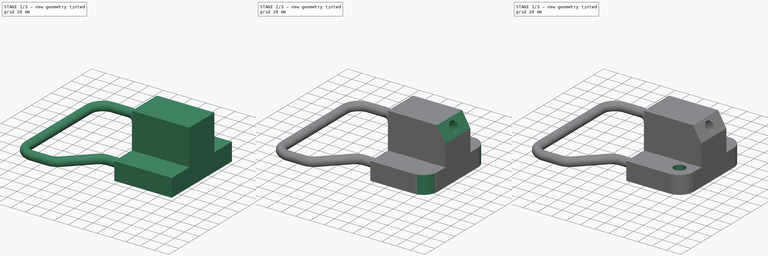
[diagram: build sequence overview — one tinted view per stage of 3, left to right]
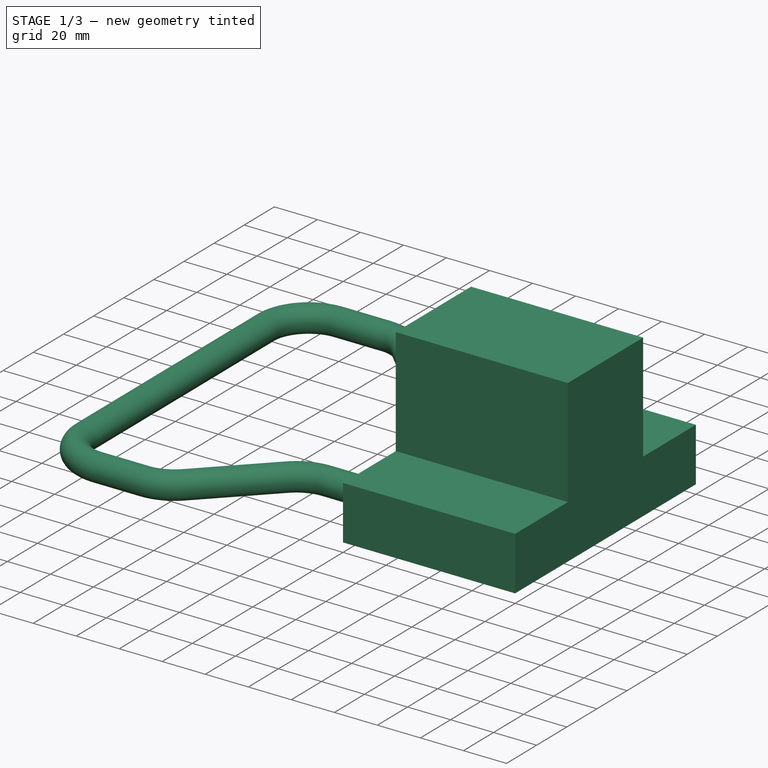
[diagram: stage 1 of 3 — iso view after this stage's code; geometry added in this stage tinted green]
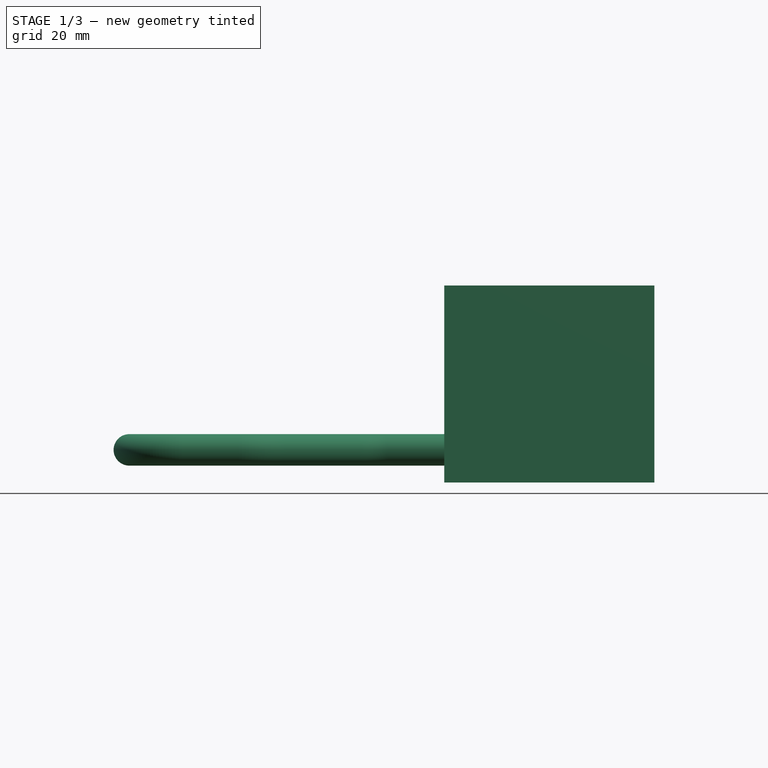
[diagram: stage 1 of 3 — front view after this stage's code; geometry added in this stage tinted green]
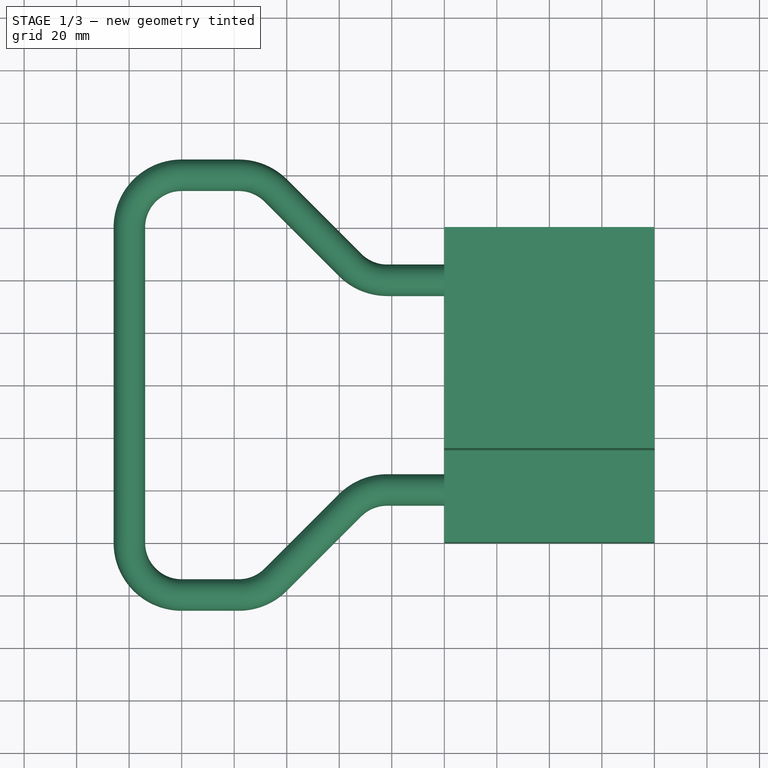
[diagram: stage 1 of 3 — top view after this stage's code; geometry added in this stage tinted green]
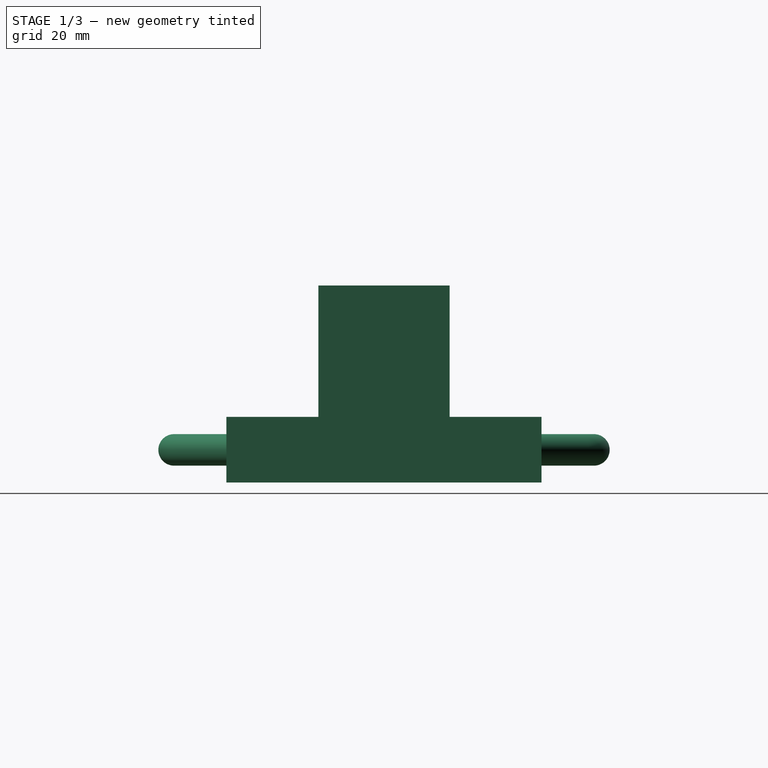
[diagram: stage 1 of 3 — right view after this stage's code; geometry added in this stage tinted green]
FCSTD DOCUMENT  (FreeCAD 0.21R33771 (Git))
Label: ex39
License: All rights reserved
LicenseURL: https://en.wikipedia.org/wiki/All_rights_reserved
objects: Sketcher::SketchObject×6, PartDesign::Fillet×2, PartDesign::Pad×1, PartDesign::Plane×1, PartDesign::AdditivePipe×1, PartDesign::Chamfer×1, PartDesign::SubtractivePipe×1, PartDesign::Pocket×1, PartDesign::Body×1
note: 22 computed .brp shape members not serialized (recipe doc carries the construction recipe); baked Part::Feature solids carry a one-line shape summary decoded from their .brp

FEATURE [Sketcher::SketchObject] Sketch
  FullyConstrained = false
  MapMode = 5
  Placement = pos=(0,0,0) rot=(0.57735,0.57735,0.57735;2.0944rad)
  Support = -> [YZ_Plane]
  sketch-geometry (8):
    g0: LineSegment StartX=-60.0062 StartY=25 StartZ=0 EndX=-25.0062 EndY=25 EndZ=0
    g1: LineSegment StartX=59.9938 StartY=25.0003 StartZ=0 EndX=59.9938 EndY=0 EndZ=0
    g2: LineSegment StartX=59.9938 StartY=0 StartZ=0 EndX=-60.0062 EndY=0 EndZ=0
    g3: LineSegment StartX=-60.0062 StartY=0 StartZ=0 EndX=-60.0062 EndY=25 EndZ=0
    g4: LineSegment StartX=24.9938 StartY=25 StartZ=0 EndX=24.9938 EndY=75 EndZ=0
    g5: LineSegment StartX=24.9938 StartY=75 StartZ=0 EndX=-25.0062 EndY=75 EndZ=0
    g6: LineSegment StartX=-25.0062 StartY=75 StartZ=0 EndX=-25.0062 EndY=25 EndZ=0
    g7: LineSegment StartX=24.9938 StartY=25 StartZ=0 EndX=59.9938 EndY=25.0003 EndZ=0
  constraints (22):
    c: Coincident(g7,g1)
    c: Coincident(g2,g3)
    c: Coincident(g3,g0)
    c: Horizontal(g0)
    c: Vertical(g1)
    c: Vertical(g3)
    c: Coincident(g4,g5)
    c: Coincident(g5,g6)
    c: Horizontal(g5)
    c: Vertical(g4)
    c: Vertical(g6)
    c: DistanceX(g2,g2) = 120
    c: DistanceY(g6,g6) = 50
    c: DistanceY(g-1,g4) = 25
    c: Coincident(g0,g6)
    c: Horizontal(g0,g4)
    c: Equal(g7,g0)
    c: Coincident(g4,g7)
    c: PointOnObject(g2,g-1)
    c: Horizontal(g2)
    c: Coincident(g2,g1)
    c: Equal(g6,g5)
FEATURE [PartDesign::Pad] Pad
  Direction = (1,-2e-16,3e-16)
  Length = 80
  Length2 = 10
  Placement = pos=(0,0,0) rot=(1,1,1;2.0944rad)
  Profile = -> Sketch
  ReferenceAxis = -> Sketch [N_Axis]
  Type = 0
FEATURE [PartDesign::Plane] DatumPlane
  AttachmentOffset = pos=(0,0,-12.5) rot=(0,0,1;0rad)
  Length = 209.472
  MapMode = 5
  Placement = pos=(-4.9e-15,6.9e-15,12.5) rot=(0.707107,0.707107,0;3.14159rad)
  ResizeMode = 0
  Support = -> [Pad]
  Width = 243.547
FEATURE [Sketcher::SketchObject] Sketch001
  FullyConstrained = true
  MapMode = 5
  Placement = pos=(-4.9e-15,6.9e-15,12.5) rot=(0.707107,0.707107,0;3.14159rad)
  Support = -> [DatumPlane]
  sketch-geometry (15):
    g0: LineSegment StartX=-40 StartY=0 StartZ=0 EndX=-40 EndY=-21.7157 EndZ=0
    g1: LineSegment StartX=-45.8579 StartY=-35.8579 StartZ=0 EndX=-74.1421 EndY=-64.1421 EndZ=0
    g2: LineSegment StartX=-80 StartY=-78.2843 StartZ=0 EndX=-80 EndY=-100 EndZ=0
    g3: LineSegment StartX=-60 StartY=-120 StartZ=0 EndX=60 EndY=-120 EndZ=0
    g4: LineSegment StartX=80 StartY=-100 StartZ=0 EndX=80 EndY=-78.2843 EndZ=0
    g5: LineSegment StartX=74.1421 StartY=-64.1421 StartZ=0 EndX=45.8579 EndY=-35.8579 EndZ=0
    g6: LineSegment StartX=40 StartY=-21.7157 StartZ=0 EndX=40 EndY=0 EndZ=0
    g7: ArcOfCircle CenterX=60 CenterY=-100 CenterZ=0 NormalX=0 NormalY=0 NormalZ=1 AngleXU=0 Radius=20 StartAngle=4.71239 EndAngle=6.28319
    g8: ArcOfCircle CenterX=-60 CenterY=-100 CenterZ=0 NormalX=0 NormalY=0 NormalZ=1 AngleXU=0 Radius=20 StartAngle=3.14159 EndAngle=4.71239
    g9: ArcOfCircle CenterX=-60 CenterY=-78.2843 CenterZ=0 NormalX=0 NormalY=0 NormalZ=1 AngleXU=0 Radius=20 StartAngle=2.35619 EndAngle=3.14159
    g10: ArcOfCircle CenterX=-60 CenterY=-21.7157 CenterZ=0 NormalX=0 NormalY=0 NormalZ=1 AngleXU=0 Radius=20 StartAngle=5.49779 EndAngle=6.28319
    g11: ArcOfCircle CenterX=60 CenterY=-21.7157 CenterZ=0 NormalX=0 NormalY=0 NormalZ=1 AngleXU=0 Radius=20 StartAngle=3.14159 EndAngle=3.92699
    g12: ArcOfCircle CenterX=60 CenterY=-78.2843 CenterZ=0 NormalX=0 NormalY=0 NormalZ=1 AngleXU=0 Radius=20 StartAngle=0 EndAngle=0.785398
    g13: LineSegment StartX=-45.8579 StartY=-35.8579 StartZ=0 EndX=-40 EndY=-30 EndZ=0
    g14: LineSegment StartX=-40 StartY=-21.7157 StartZ=0 EndX=-40 EndY=-30 EndZ=0
  constraints (37):
    c: PointOnObject(g0,g-1)
    c: Vertical(g0)
    c: Horizontal(g3)
    c: Vertical(g4)
    c: Vertical(g6)
    c: Equal(g1,g5)
    c: Angle(g0,g1) = 2.35619
    c: Angle(g5,g6) = 2.35619
    c: Tangent(g3,g7) = -1.5708
    c: Tangent(g4,g7) = -1.5708
    c: Tangent(g3,g8) = -1.5708
    c: Tangent(g2,g8) = -1.5708
    c: Tangent(g1,g9) = -1.5708
    c: Tangent(g2,g9) = -1.5708
    c: Tangent(g1,g10) = 1.5708
    c: Tangent(g0,g10) = 1.5708
    c: Tangent(g6,g11) = 1.5708
    c: Tangent(g5,g11) = 1.5708
    c: Tangent(g4,g12) = -1.5708
    c: Tangent(g5,g12) = -1.5708
    c: Equal(g7,g12)
    c: Equal(g12,g11)
    c: Equal(g11,g10)
    c: Equal(g10,g9)
    c: Radius(g8) = 20
    c: Equal(g2,g4)
    c: DistanceX(g2,g4) = 160
    c: DistanceX(g0,g6) = 80
    c: Coincident(g13,g1)
    c: Coincident(g14,g0)
    c: Coincident(g14,g13)
    c: Parallel(g1,g13)
    c: Parallel(g14,g0)
    c: DistanceY(g13,g0) = 30
    c: Symmetric(g6,g0,g-2)
    c: Symmetric(g8,g7,g-2)
    c: Distance(g6,g3) = 120
FEATURE [Sketcher::SketchObject] Sketch002
  FullyConstrained = false
  MapMode = 5
  Placement = pos=(-6.3e-15,0,0) rot=(0.57735,0.57735,-0.57735;4.18879rad)
  Support = -> [Pad]
  sketch-geometry (1):
    g0: Circle CenterX=-39.9242 CenterY=-12.4147 CenterZ=0 NormalX=0 NormalY=0 NormalZ=1 AngleXU=0 Radius=6
  constraints (1):
    c: Radius(g0) = 6
FEATURE [PartDesign::AdditivePipe] AdditivePipe
  AuxilleryCurvelinear = true
  AuxillerySpineTangent = false
  BaseFeature = -> Pad
  Binormal = (0,0,0)
  Mode = 0
  Placement = pos=(0,0,0) rot=(1,1,1;2.0944rad)
  Profile = -> Sketch002
  Spine = -> Sketch001
  SpineTangent = false
  Transformation = 0
  Transition = 0
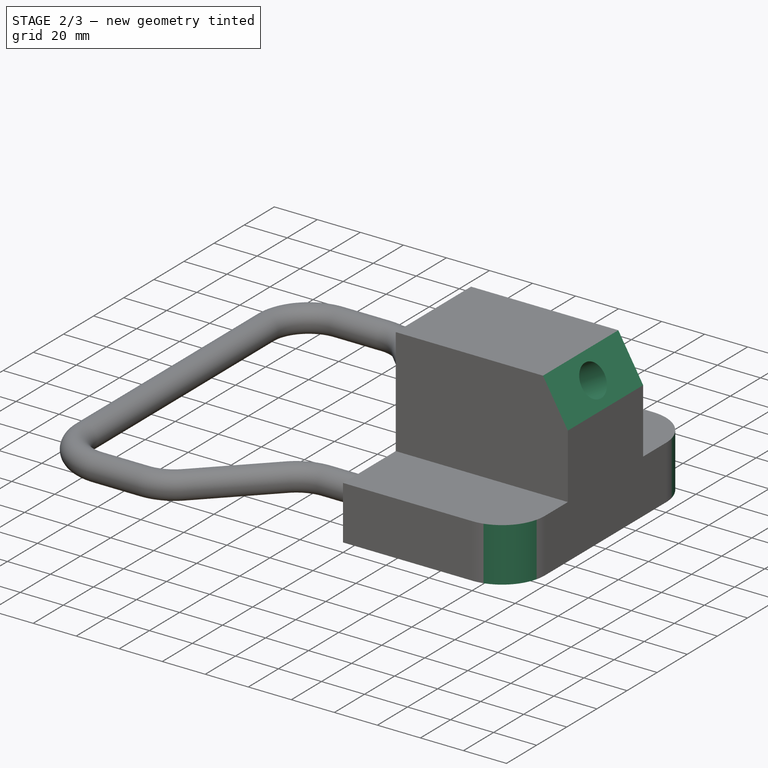
[diagram: stage 2 of 3 — iso view after this stage's code; geometry added in this stage tinted green]
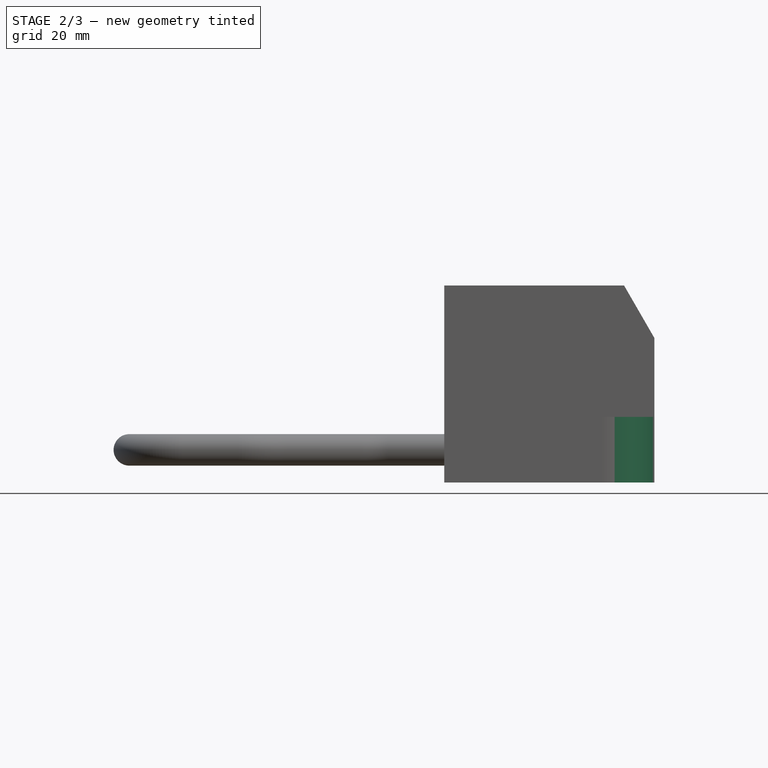
[diagram: stage 2 of 3 — front view after this stage's code; geometry added in this stage tinted green]
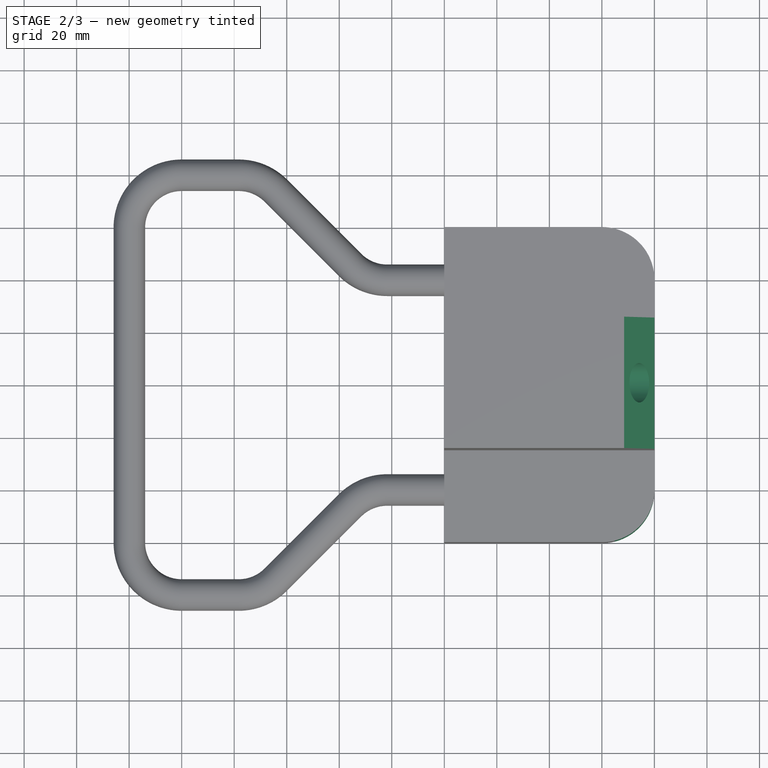
[diagram: stage 2 of 3 — top view after this stage's code; geometry added in this stage tinted green]
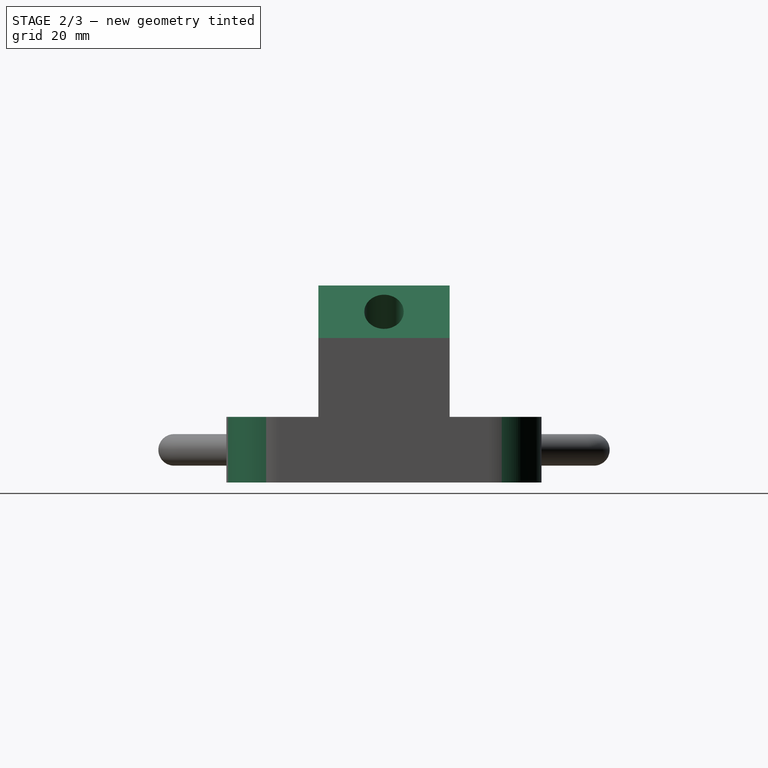
[diagram: stage 2 of 3 — right view after this stage's code; geometry added in this stage tinted green]
FEATURE [PartDesign::Chamfer] Chamfer
  Angle = 30
  Base = -> AdditivePipe [Edge22]
  BaseFeature = -> AdditivePipe
  ChamferType = 2
  FlipDirection = false
  Placement = pos=(0,0,0) rot=(1,1,1;2.0944rad)
  Size = 20
  Size2 = 1
  SupportTransform = false
  UseAllEdges = false
FEATURE [Sketcher::SketchObject] Sketch003
  ExternalGeometry = -> [Chamfer]
  FullyConstrained = false
  MapMode = 5
  Placement = pos=(0,0,0) rot=(1,0,0;1.5708rad)
  Support = -> [XZ_Plane]
  sketch-geometry (3):
    g0: LineSegment StartX=74.2265 StartY=65 StartZ=0 EndX=36.1547 EndY=43.0192 EndZ=0
    g1: LineSegment StartX=21.1547 StartY=39 StartZ=0 EndX=-1.00089 EndY=39 EndZ=0
    g2: ArcOfCircle CenterX=21.1547 CenterY=69 CenterZ=0 NormalX=0 NormalY=0 NormalZ=1 AngleXU=0 Radius=30 StartAngle=4.71239 EndAngle=5.23599
  constraints (7):
    c: Horizontal(g1)
    c: DistanceY(g1,g-4) = 36
    c: Perpendicular(g-3,g0)
    c: Symmetric(g-3,g-4,g0)
    c: Tangent(g0,g2) = 1.5708
    c: Tangent(g1,g2) = 1.5708
    c: Radius(g2) = 30
FEATURE [Sketcher::SketchObject] Sketch004
  ExternalGeometry = -> [Sketch003]
  FullyConstrained = true
  MapMode = 5
  Placement = pos=(0,0,0) rot=(0.57735,0.57735,0.57735;2.0944rad)
  Support = -> [YZ_Plane]
  sketch-geometry (1):
    g0: Circle CenterX=0 CenterY=39 CenterZ=0 NormalX=0 NormalY=0 NormalZ=1 AngleXU=0 Radius=7.5
  constraints (2):
    c: Coincident(g0,g-3)
    c: Radius(g0) = 7.5
FEATURE [PartDesign::SubtractivePipe] SubtractivePipe
  AuxilleryCurvelinear = true
  AuxillerySpineTangent = false
  BaseFeature = -> Chamfer
  Binormal = (0,0,0)
  Mode = 0
  Placement = pos=(0,0,0) rot=(1,1,1;2.0944rad)
  Profile = -> Sketch004
  Spine = -> Sketch003
  SpineTangent = false
  Transformation = 0
  Transition = 0
FEATURE [PartDesign::Fillet] Fillet
  Base = -> SubtractivePipe [Edge23,Edge26]
  BaseFeature = -> SubtractivePipe
  Placement = pos=(0,0,0) rot=(1,1,1;2.0944rad)
  Radius = 20
  SupportTransform = false
  UseAllEdges = false
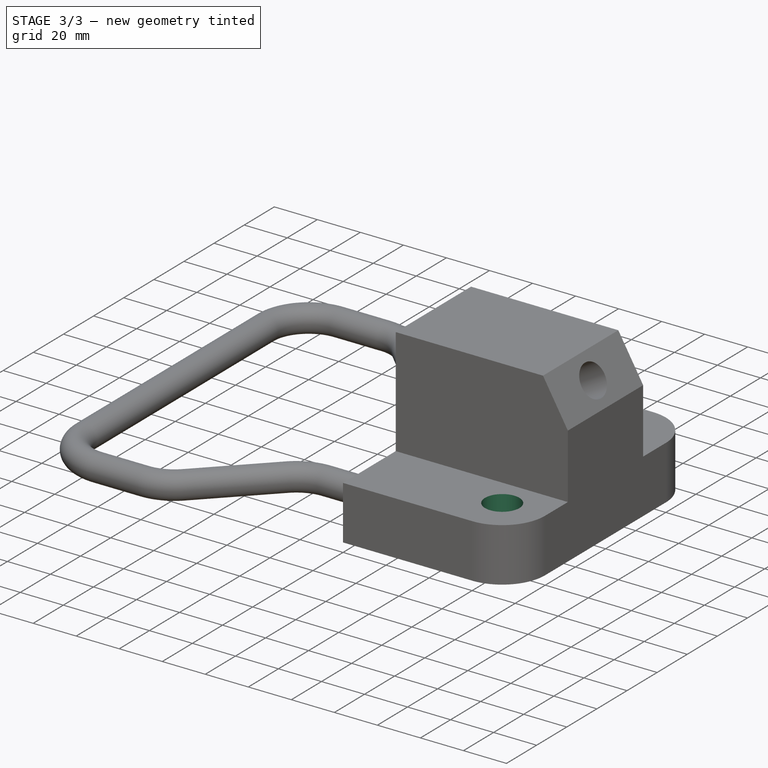
[diagram: stage 3 of 3 — iso view after this stage's code; geometry added in this stage tinted green]
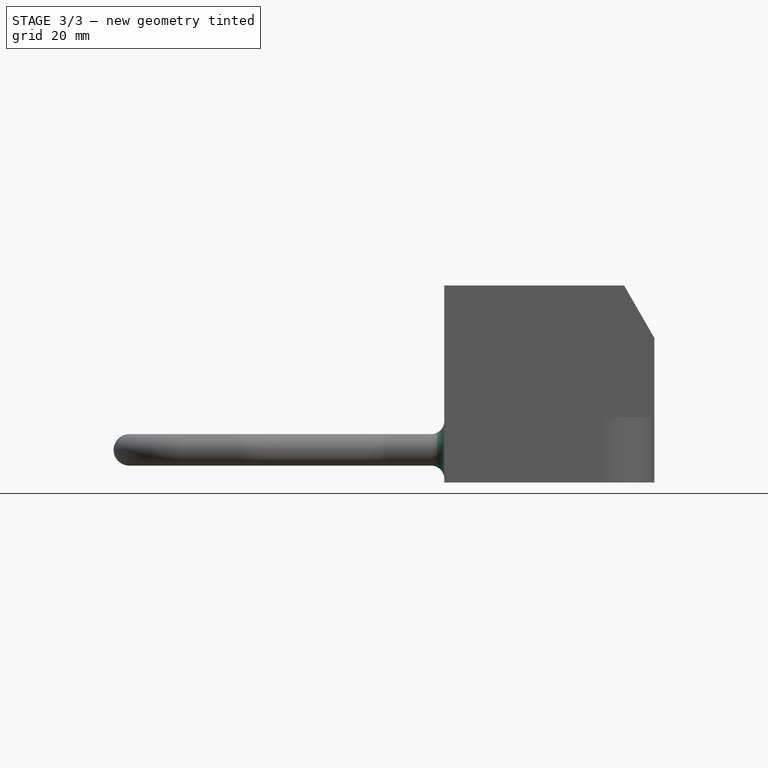
[diagram: stage 3 of 3 — front view after this stage's code; geometry added in this stage tinted green]
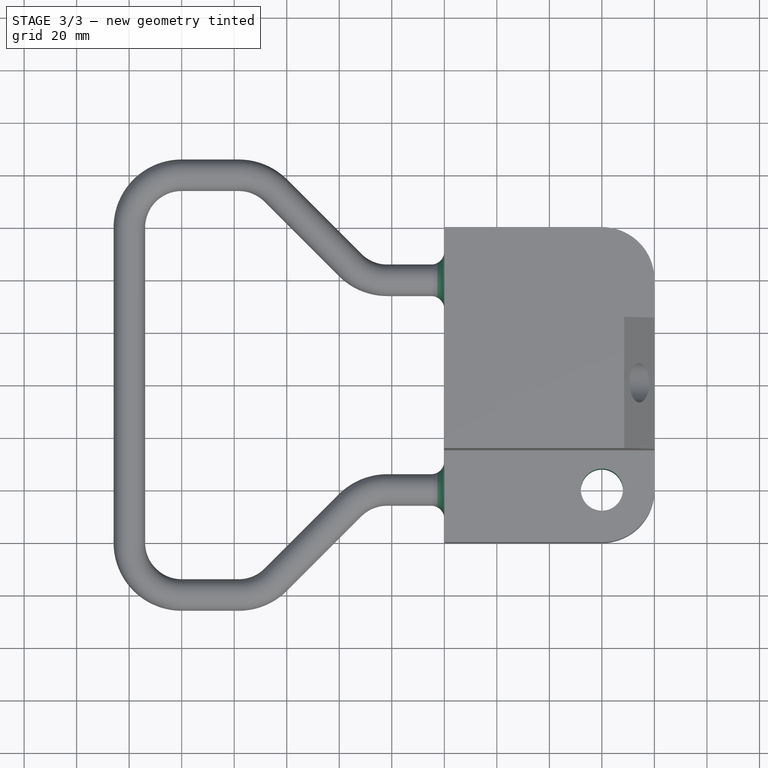
[diagram: stage 3 of 3 — top view after this stage's code; geometry added in this stage tinted green]
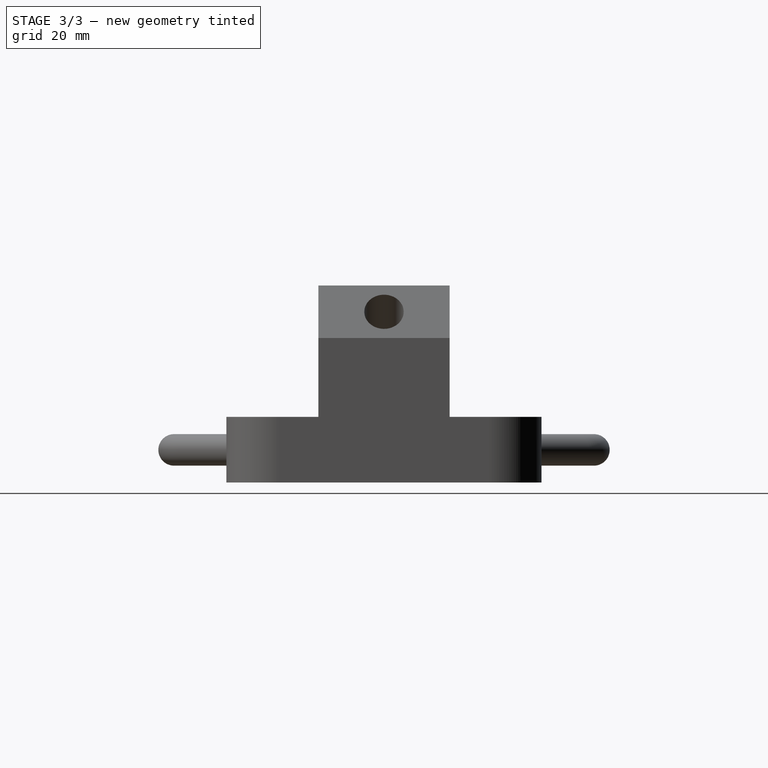
[diagram: stage 3 of 3 — right view after this stage's code; geometry added in this stage tinted green]
FEATURE [Sketcher::SketchObject] Sketch005
  ExternalGeometry = -> [Fillet]
  FullyConstrained = true
  MapMode = 5
  Placement = pos=(-2.64e-14,1.94e-14,25) rot=(0,0,-1;1.5708rad)
  Support = -> [Fillet]
  sketch-geometry (2):
    g0: Circle CenterX=-39.9938 CenterY=60 CenterZ=0 NormalX=0 NormalY=0 NormalZ=1 AngleXU=0 Radius=8
    g1: Circle CenterX=40.0062 CenterY=60 CenterZ=0 NormalX=0 NormalY=0 NormalZ=1 AngleXU=0 Radius=8
  constraints (4):
    c: Coincident(g0,g-4)
    c: Coincident(g1,g-3)
    c: Equal(g1,g0)
    c: Radius(g0) = 8
FEATURE [PartDesign::Pocket] Pocket
  BaseFeature = -> Fillet
  Direction = (1.1e-15,-8e-16,-1)
  Length = 5
  Length2 = 5
  Placement = pos=(0,0,0) rot=(1,1,1;2.0944rad)
  Profile = -> Sketch005
  ReferenceAxis = -> Sketch005 [N_Axis]
  Type = 1
FEATURE [PartDesign::Fillet] Fillet001
  Base = -> Pocket [Edge38,Edge39]
  BaseFeature = -> Pocket
  Placement = pos=(0,0,0) rot=(1,1,1;2.0944rad)
  Radius = 5
  SupportTransform = false
  UseAllEdges = false
FEATURE [PartDesign::Body] Body
  Group = -> [Sketch,Pad,DatumPlane,Sketch001,Sketch002,AdditivePipe,Chamfer,Sketch003,Sketch004,SubtractivePipe,Fillet,Sketch005,Pocket,Fillet001]
  Origin = -> Origin
  Tip = -> Fillet001
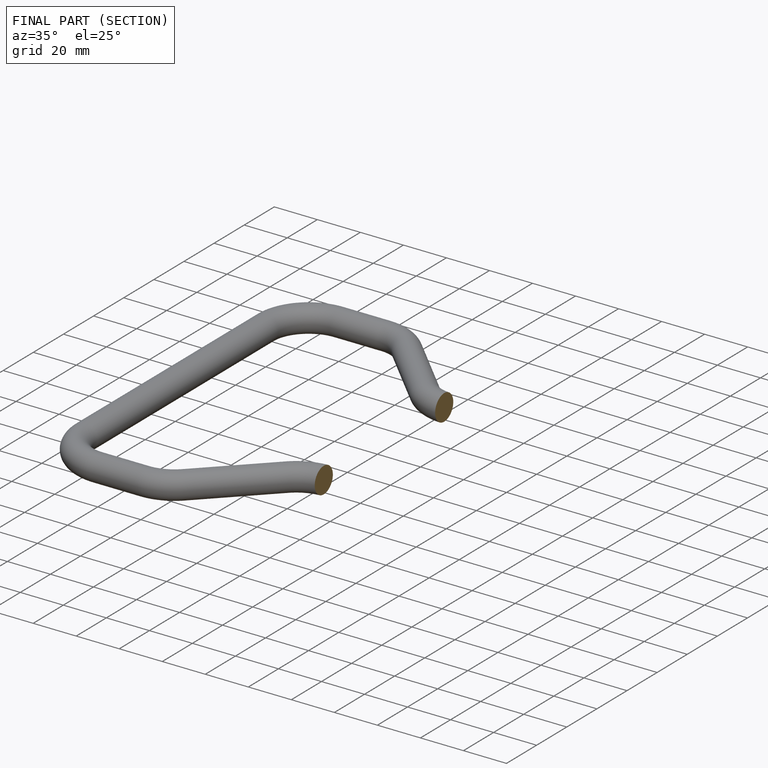
[diagram: finished part — half-section view (interior)]
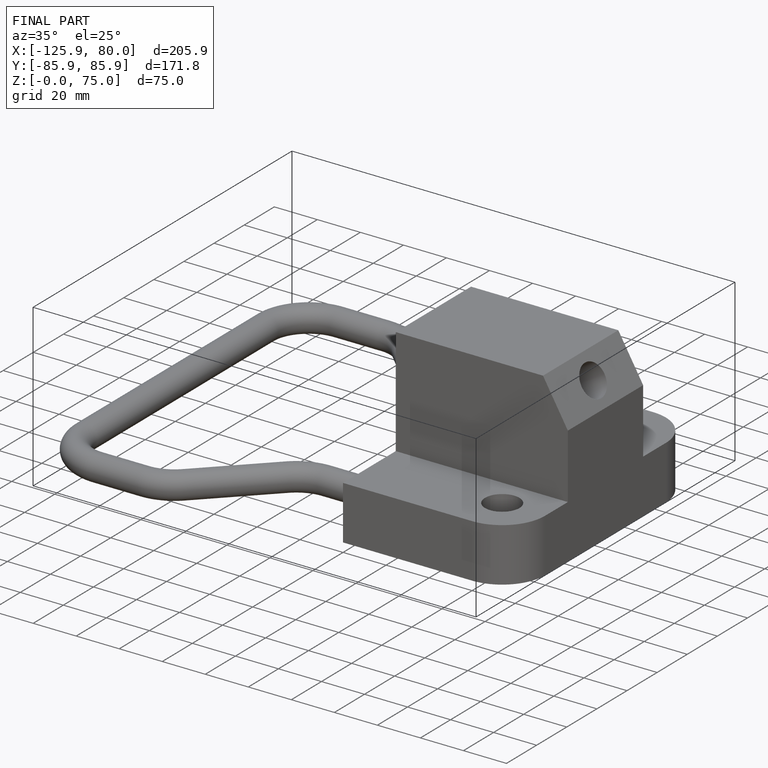
[diagram: finished part — iso view with bounding-box wireframe]
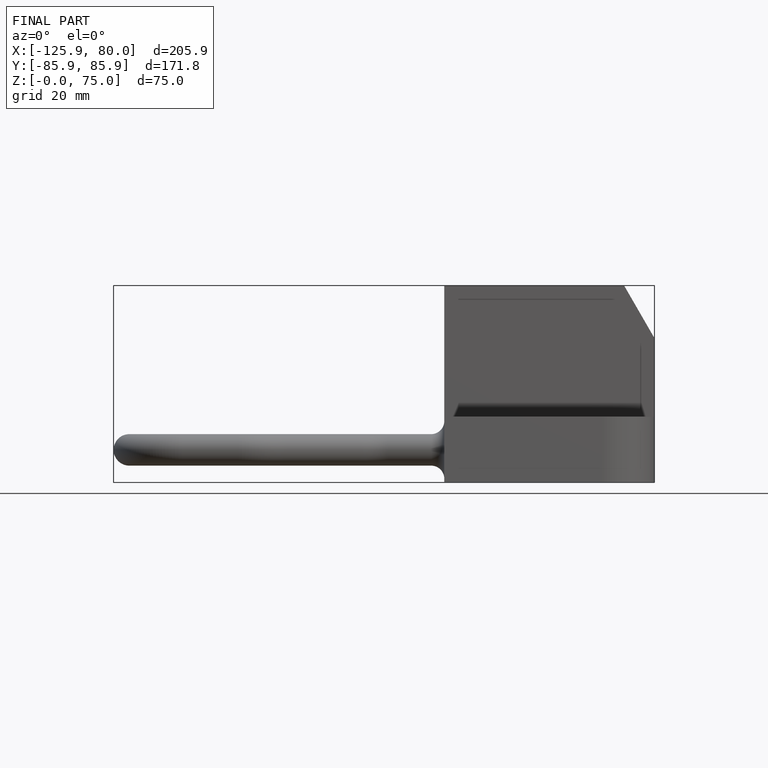
[diagram: finished part — front view with bounding-box wireframe]
